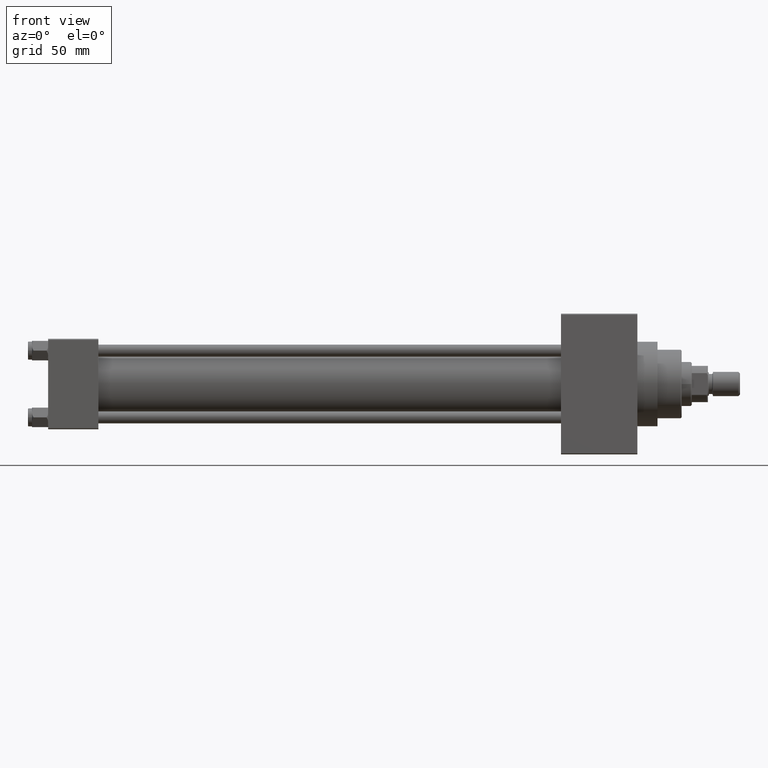
[diagram: clean part render]
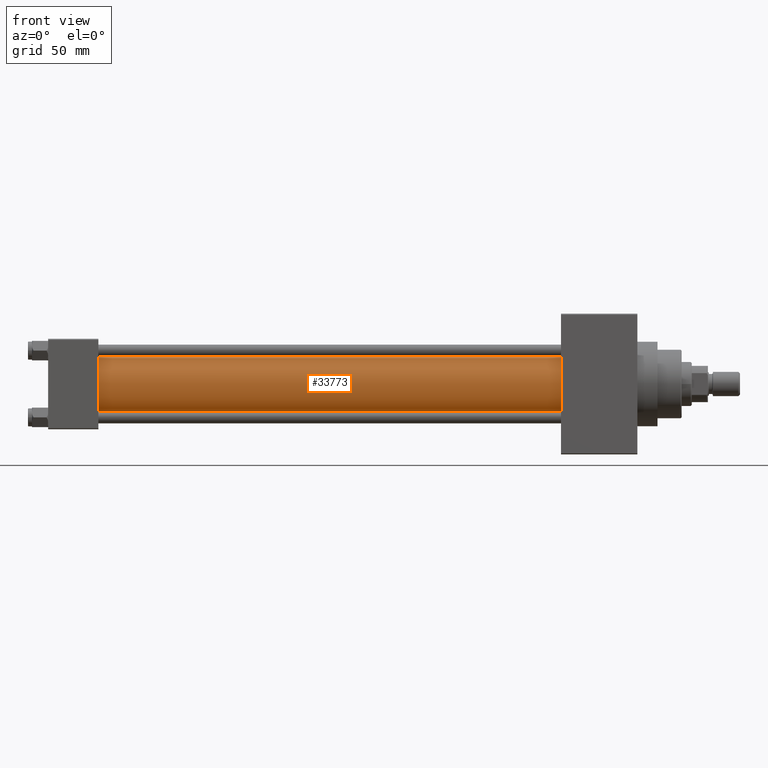
[diagram: same view with one face highlighted and labeled with its STEP entity id]
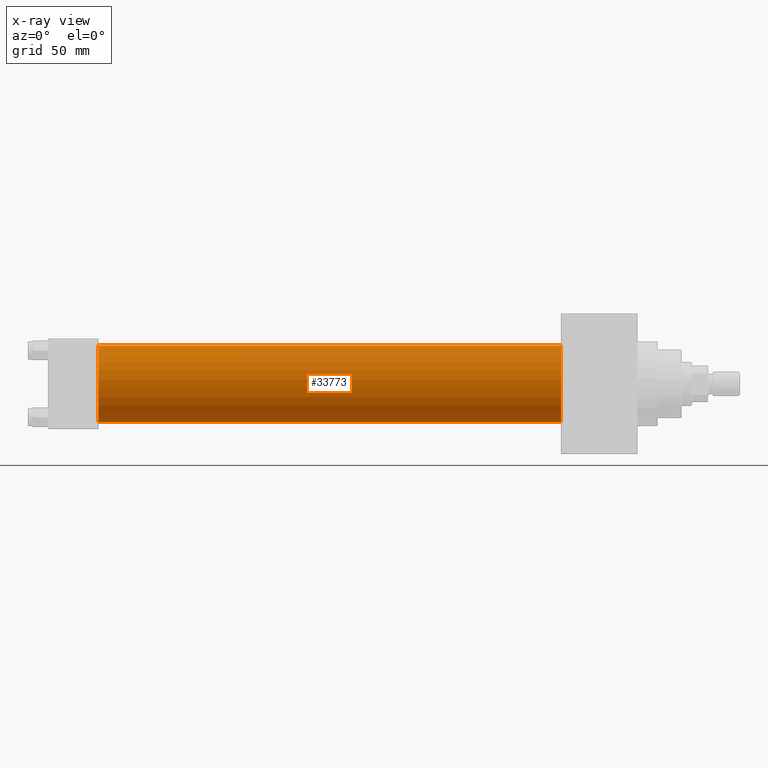
[diagram: x-ray of the same camera — body ghosted, the highlighted face saturated]
A machine part, front view. The second image highlights one B-rep face of the part: STEP entity #33773.
The next image is the same camera in x-ray: the body ghosted, the highlighted face saturated — about 0% of this face is hidden behind the body in this view.
In plain terms, the highlighted cylindrical surface (partial cylindrical patch) has radius 19 mm, axis along (-1, -0, -0).
Its self-contained STEP definition (entity closure, byte-faithful):
#109 = EDGE_LOOP ( 'NONE', ( #8825, #30718, #35480, #21846 ) ) ;
#2205 = VECTOR ( 'NONE', #20299, 1000.000000000000000 ) ;
#3479 = DIRECTION ( 'NONE',  ( -1.000000000000000000, -0.000000000000000000, -0.000000000000000000 ) ) ;
#5631 = LINE ( 'NONE', #19354, #2205 ) ;
#5681 = DIRECTION ( 'NONE',  ( 0.000000000000000000, 0.000000000000000000, -1.000000000000000000 ) ) ;
#6732 = CARTESIAN_POINT ( 'NONE',  ( 24.99999999999999289, -2.752562955852396712E-16, -19.00000000000000000 ) ) ;
#7395 = DIRECTION ( 'NONE',  ( 0.000000000000000000, 0.000000000000000000, 1.000000000000000000 ) ) ;
#8491 = EDGE_CURVE ( 'NONE', #32536, #44122, #40773, .T. ) ;
#8825 = ORIENTED_EDGE ( 'NONE', *, *, #8491, .F. ) ;
#11479 = DIRECTION ( 'NONE',  ( 1.000000000000000000, -0.000000000000000000, 0.000000000000000000 ) ) ;
#11490 = CYLINDRICAL_SURFACE ( 'NONE', #45378, 19.00000000000000000 ) ;
#15099 = DIRECTION ( 'NONE',  ( -1.000000000000000000, -0.000000000000000000, -0.000000000000000000 ) ) ;
#15381 = VERTEX_POINT ( 'NONE', #43008 ) ;
#17703 = EDGE_CURVE ( 'NONE', #15381, #18219, #5631, .T. ) ;
#18219 = VERTEX_POINT ( 'NONE', #18709 ) ;
#18709 = CARTESIAN_POINT ( 'NONE',  ( 24.99999999999999289, -2.602085213965210642E-15, 19.00000000000000000 ) ) ;
#18869 = CARTESIAN_POINT ( 'NONE',  ( 255.0000000000000000, -2.752562955852396712E-16, -19.00000000000000000 ) ) ;
#19354 = CARTESIAN_POINT ( 'NONE',  ( 255.0000000000000000, -2.602085213965210642E-15, 19.00000000000000000 ) ) ;
#20299 = DIRECTION ( 'NONE',  ( -1.000000000000000000, -0.000000000000000000, -0.000000000000000000 ) ) ;
#20349 = AXIS2_PLACEMENT_3D ( 'NONE', #31425, #45404, #5681 ) ;
#21846 = ORIENTED_EDGE ( 'NONE', *, *, #36102, .T. ) ;
#23920 = AXIS2_PLACEMENT_3D ( 'NONE', #40842, #11479, #7395 ) ;
#26169 = DIRECTION ( 'NONE',  ( 0.000000000000000000, 0.000000000000000000, 1.000000000000000000 ) ) ;
#26406 = CARTESIAN_POINT ( 'NONE',  ( 255.0000000000000000, -2.602085213965210642E-15, 0.000000000000000000 ) ) ;
#28046 = CIRCLE ( 'NONE', #20349, 19.00000000000000000 ) ;
#29536 = VECTOR ( 'NONE', #3479, 1000.000000000000000 ) ;
#30718 = ORIENTED_EDGE ( 'NONE', *, *, #44671, .F. ) ;
#31425 = CARTESIAN_POINT ( 'NONE',  ( 255.0000000000000000, -2.602085213965210642E-15, 0.000000000000000000 ) ) ;
#32536 = VERTEX_POINT ( 'NONE', #37486 ) ;
#33132 = CIRCLE ( 'NONE', #23920, 19.00000000000000000 ) ;
#33773 = ADVANCED_FACE ( 'NONE', ( #45187 ), #11490, .T. ) ;
#35480 = ORIENTED_EDGE ( 'NONE', *, *, #17703, .T. ) ;
#36102 = EDGE_CURVE ( 'NONE', #18219, #44122, #33132, .T. ) ;
#37486 = CARTESIAN_POINT ( 'NONE',  ( 255.0000000000000000, -2.752562955852396712E-16, -19.00000000000000000 ) ) ;
#40773 = LINE ( 'NONE', #18869, #29536 ) ;
#40842 = CARTESIAN_POINT ( 'NONE',  ( 24.99999999999999289, -2.602085213965210642E-15, 0.000000000000000000 ) ) ;
#43008 = CARTESIAN_POINT ( 'NONE',  ( 255.0000000000000000, -2.602085213965210642E-15, 19.00000000000000000 ) ) ;
#44122 = VERTEX_POINT ( 'NONE', #6732 ) ;
#44671 = EDGE_CURVE ( 'NONE', #15381, #32536, #28046, .T. ) ;
#45187 = FACE_OUTER_BOUND ( 'NONE', #109, .T. ) ;
#45378 = AXIS2_PLACEMENT_3D ( 'NONE', #26406, #15099, #26169 ) ;
#45404 = DIRECTION ( 'NONE',  ( 1.000000000000000000, 0.000000000000000000, 0.000000000000000000 ) ) ;